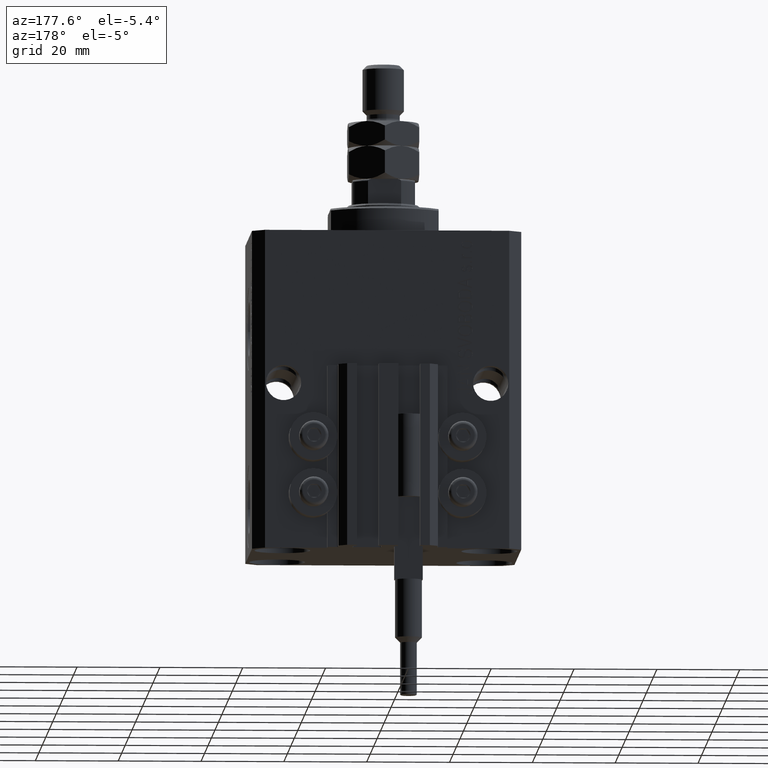
[diagram: clean part render]
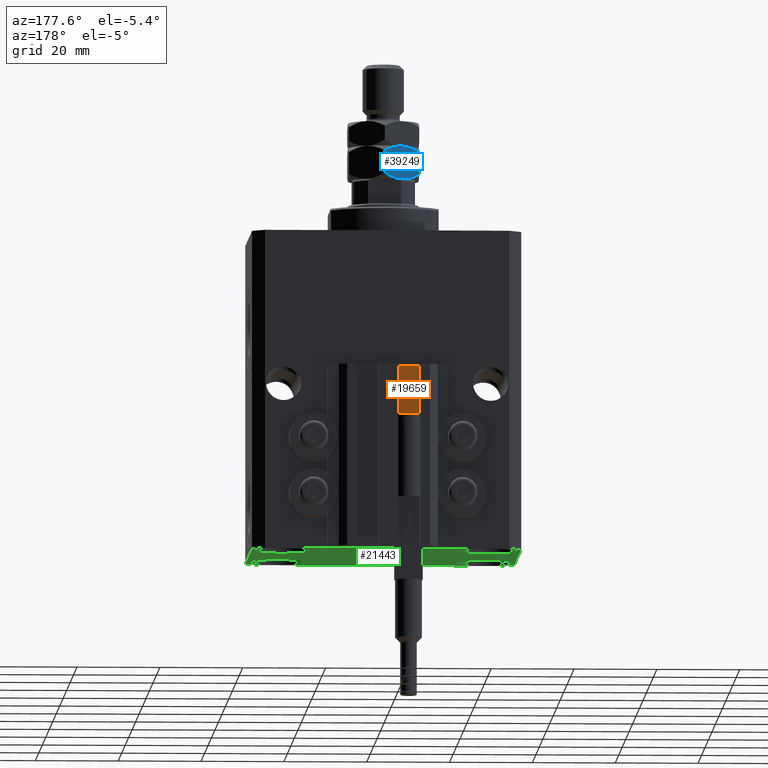
[diagram: same view with three faces highlighted in distinct colors, each labeled with its STEP entity id]
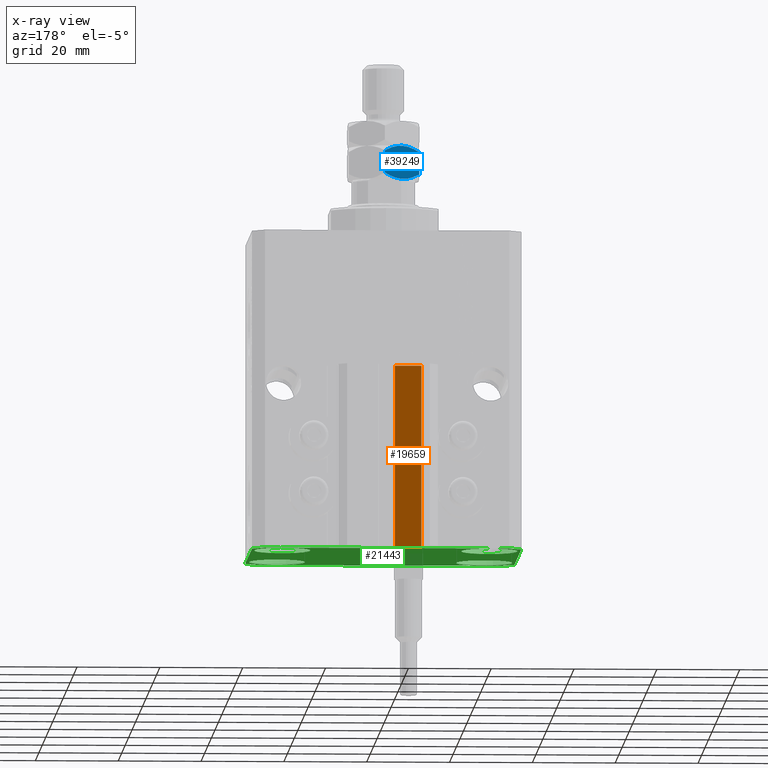
[diagram: x-ray of the same camera — body ghosted, the three highlighted faces saturated]
A machine part, auxiliary view with three faces highlighted in distinct colors.
The next image is the same camera in x-ray (body ghosted, the three faces saturated) — at least one of them is partly hidden behind the body in this view.
Their STEP definitions:

[orange] entity #19659 — the highlighted planar face has unit normal (0, 1, 0).
#1001 = PLANE ( 'NONE',  #47015 ) ;
#3110 = DIRECTION ( 'NONE',  ( 0.000000000000000000, 0.000000000000000000, 1.000000000000000000 ) ) ;
#3251 = DIRECTION ( 'NONE',  ( -1.000000000000000000, 0.000000000000000000, 0.000000000000000000 ) ) ;
#5103 = EDGE_CURVE ( 'NONE', #28020, #16138, #26289, .T. ) ;
#7058 = CARTESIAN_POINT ( 'NONE',  ( -1.800000000000000933, 24.49999999999949551, -77.00000000000000000 ) ) ;
#7915 = FACE_OUTER_BOUND ( 'NONE', #31817, .T. ) ;
#9576 = CARTESIAN_POINT ( 'NONE',  ( -1.800000000000000933, 24.49999999999949551, -77.00000000000000000 ) ) ;
#11433 = EDGE_CURVE ( 'NONE', #16138, #34694, #35994, .T. ) ;
#12896 = DIRECTION ( 'NONE',  ( 0.000000000000000000, 0.000000000000000000, 1.000000000000000000 ) ) ;
#15089 = ORIENTED_EDGE ( 'NONE', *, *, #5103, .T. ) ;
#15819 = EDGE_CURVE ( 'NONE', #28020, #46455, #38960, .T. ) ;
#16138 = VERTEX_POINT ( 'NONE', #20165 ) ;
#16290 = EDGE_CURVE ( 'NONE', #46455, #34694, #41889, .T. ) ;
#16444 = DIRECTION ( 'NONE',  ( 0.000000000000000000, 1.000000000000000000, -0.000000000000000000 ) ) ;
#19659 = ADVANCED_FACE ( 'NONE', ( #7915 ), #1001, .T. ) ;
#20165 = CARTESIAN_POINT ( 'NONE',  ( -8.199999999999999289, 24.49999999999949551, -77.00000000000000000 ) ) ;
#21620 = CARTESIAN_POINT ( 'NONE',  ( -8.199999999999999289, 24.49999999999949551, -33.00000000000000000 ) ) ;
#22160 = CARTESIAN_POINT ( 'NONE',  ( -1.800000000000000933, 24.49999999999949551, -33.00000000000000000 ) ) ;
#22643 = DIRECTION ( 'NONE',  ( -1.000000000000000000, 0.000000000000000000, 0.000000000000000000 ) ) ;
#26289 = LINE ( 'NONE', #7058, #45695 ) ;
#28020 = VERTEX_POINT ( 'NONE', #9576 ) ;
#29194 = VECTOR ( 'NONE', #12896, 1000.000000000000000 ) ;
#31817 = EDGE_LOOP ( 'NONE', ( #40197, #34930, #15089, #40746 ) ) ;
#33118 = VECTOR ( 'NONE', #40799, 1000.000000000000000 ) ;
#34694 = VERTEX_POINT ( 'NONE', #21620 ) ;
#34930 = ORIENTED_EDGE ( 'NONE', *, *, #15819, .F. ) ;
#35994 = LINE ( 'NONE', #48404, #33118 ) ;
#38960 = LINE ( 'NONE', #39716, #29194 ) ;
#39227 = CARTESIAN_POINT ( 'NONE',  ( -1.800000000000000933, 24.49999999999949551, -33.00000000000000000 ) ) ;
#39716 = CARTESIAN_POINT ( 'NONE',  ( -1.800000000000000933, 24.49999999999949551, -77.00000000000000000 ) ) ;
#40197 = ORIENTED_EDGE ( 'NONE', *, *, #16290, .F. ) ;
#40746 = ORIENTED_EDGE ( 'NONE', *, *, #11433, .T. ) ;
#40799 = DIRECTION ( 'NONE',  ( 0.000000000000000000, 0.000000000000000000, 1.000000000000000000 ) ) ;
#41889 = LINE ( 'NONE', #22160, #44604 ) ;
#44604 = VECTOR ( 'NONE', #22643, 1000.000000000000000 ) ;
#45695 = VECTOR ( 'NONE', #3251, 1000.000000000000000 ) ;
#46455 = VERTEX_POINT ( 'NONE', #39227 ) ;
#47015 = AXIS2_PLACEMENT_3D ( 'NONE', #49436, #16444, #3110 ) ;
#48404 = CARTESIAN_POINT ( 'NONE',  ( -8.199999999999999289, 24.49999999999949551, -77.00000000000000000 ) ) ;
#49436 = CARTESIAN_POINT ( 'NONE',  ( -1.800000000000000933, 24.49999999999949551, -77.00000000000000000 ) ) ;

[blue] entity #39249 — the highlighted planar face has unit normal (0.5, -0.866, 0).
#2315 = CARTESIAN_POINT ( 'NONE',  ( -4.989245346831672201, 6.934412432177284202, 8.000000000000005329 ) ) ;
#2597 = CARTESIAN_POINT ( 'NONE',  ( -4.249999999999994671, 7.361215932167727516, 8.000000000000000000 ) ) ;
#3078 = CARTESIAN_POINT ( 'NONE',  ( -1.348005192929855323, 9.036683415216572257, 7.396790787579877069 ) ) ;
#3259 = EDGE_LOOP ( 'NONE', ( #10305, #14223, #29049, #13859, #29201, #6322 ) ) ;
#5705 = EDGE_CURVE ( 'NONE', #20072, #20747, #31061, .T. ) ;
#6322 = ORIENTED_EDGE ( 'NONE', *, *, #34341, .F. ) ;
#6389 = CARTESIAN_POINT ( 'NONE',  ( -2.407069963478076779, 8.425232084851307590, 7.746375910675348919 ) ) ;
#7109 = CARTESIAN_POINT ( 'NONE',  ( -5.000029324638989081, 6.928186299687298266, 0.03373674959836554799 ) ) ;
#7281 = CARTESIAN_POINT ( 'NONE',  ( -4.249999999999994671, 7.361215932167727516, 8.000000000000000000 ) ) ;
#9736 = CARTESIAN_POINT ( 'NONE',  ( -4.249999999999994671, 7.361215932167727516, 8.000000000000000000 ) ) ;
#10164 = CARTESIAN_POINT ( 'NONE',  ( -7.834310611062749174, 5.291813236011422283, 7.069381371676069392 ) ) ;
#10305 = ORIENTED_EDGE ( 'NONE', *, *, #42503, .F. ) ;
#11152 = CARTESIAN_POINT ( 'NONE',  ( 1.960053746949402388E-16, 9.814954576223636096, 1.314954576223628546 ) ) ;
#11692 = CARTESIAN_POINT ( 'NONE',  ( -4.249999999999996447, 7.361215932167731957, 0.000000000000000000 ) ) ;
#12847 = CARTESIAN_POINT ( 'NONE',  ( -8.500000000000001776, 4.907477288111821601, 1.314954576223634097 ) ) ;
#13859 = ORIENTED_EDGE ( 'NONE', *, *, #5705, .F. ) ;
#14223 = ORIENTED_EDGE ( 'NONE', *, *, #21526, .F. ) ;
#14624 = EDGE_CURVE ( 'NONE', #20072, #37308, #15856, .T. ) ;
#14949 = CARTESIAN_POINT ( 'NONE',  ( -4.249999999999996447, 7.361215932167731957, 0.000000000000000000 ) ) ;
#15360 = DIRECTION ( 'NONE',  ( -0.000000000000000000, -0.000000000000000000, -1.000000000000000000 ) ) ;
#15380 = CARTESIAN_POINT ( 'NONE',  ( -8.500000000000001776, 4.907477288111821601, 6.685045423776368345 ) ) ;
#15856 = LINE ( 'NONE', #19655, #34038 ) ;
#15982 = CARTESIAN_POINT ( 'NONE',  ( -0.6656893889372521578, 9.430618628324037189, 0.9306186283239277213 ) ) ;
#18494 = CARTESIAN_POINT ( 'NONE',  ( -7.151994807070144233, 5.685748449118888104, 0.6032092124201268168 ) ) ;
#18495 = AXIS2_PLACEMENT_3D ( 'NONE', #29166, #25376, #19022 ) ;
#19022 = DIRECTION ( 'NONE',  ( 0.8660254037844389297, 0.4999999999999995559, 0.000000000000000000 ) ) ;
#19623 = CARTESIAN_POINT ( 'NONE',  ( -2.175848833159079736E-16, 9.814954576223636096, 6.685045423776372786 ) ) ;
#19655 = CARTESIAN_POINT ( 'NONE',  ( 0.000000000000000000, 9.814954576223636096, 8.000000000000000000 ) ) ;
#20072 = VERTEX_POINT ( 'NONE', #19623 ) ;
#20556 = B_SPLINE_CURVE_WITH_KNOTS ( 'NONE', 3,
 ( #11692, #27616, #31170, #39004, #15982, #35460 ),
 .UNSPECIFIED., .F., .F.,
 ( 4, 2, 4 ),
 ( 0.005087299150080244227, 0.007613005268011861781, 0.01013871138594347847 ),
 .UNSPECIFIED. ) ;
#20747 = VERTEX_POINT ( 'NONE', #9736 ) ;
#21386 = CARTESIAN_POINT ( 'NONE',  ( -8.500000000000001776, 4.907477288111821601, 8.000000000000000000 ) ) ;
#21526 = EDGE_CURVE ( 'NONE', #33751, #42567, #41618, .T. ) ;
#21578 = PLANE ( 'NONE',  #18495 ) ;
#21824 = CARTESIAN_POINT ( 'NONE',  ( -3.499970675361005590, 7.794245564648163871, 7.966263250401637741 ) ) ;
#22311 = CARTESIAN_POINT ( 'NONE',  ( -2.175848833159079736E-16, 9.814954576223636096, 6.685045423776372786 ) ) ;
#23439 = CARTESIAN_POINT ( 'NONE',  ( -8.500000000000001776, 4.907477288111821601, 6.685045423776368345 ) ) ;
#24962 = EDGE_CURVE ( 'NONE', #20747, #33751, #26722, .T. ) ;
#25271 = VECTOR ( 'NONE', #28969, 1000.000000000000000 ) ;
#25349 = CARTESIAN_POINT ( 'NONE',  ( -4.622229978650556070, 7.146308853793382987, -2.126899730555548151E-15 ) ) ;
#25376 = DIRECTION ( 'NONE',  ( 0.4999999999999995559, -0.8660254037844389297, 0.000000000000000000 ) ) ;
#25597 = CARTESIAN_POINT ( 'NONE',  ( -6.092930036521920556, 6.297199779484152771, 0.2536240893246534123 ) ) ;
#26336 = CARTESIAN_POINT ( 'NONE',  ( -8.500000000000001776, 4.907477288111821601, 1.314954576223634097 ) ) ;
#26722 = B_SPLINE_CURVE_WITH_KNOTS ( 'NONE', 3,
 ( #7281, #2315, #34110, #38647, #10164, #15380 ),
 .UNSPECIFIED., .F., .F.,
 ( 4, 2, 4 ),
 ( 0.005087299150080232084, 0.007613005268011854842, 0.01013871138594347847 ),
 .UNSPECIFIED. ) ;
#27616 = CARTESIAN_POINT ( 'NONE',  ( -3.510754653168324246, 7.788019432158175270, -2.226002585384300502E-15 ) ) ;
#28969 = DIRECTION ( 'NONE',  ( -0.000000000000000000, -0.000000000000000000, -1.000000000000000000 ) ) ;
#29049 = ORIENTED_EDGE ( 'NONE', *, *, #24962, .F. ) ;
#29166 = CARTESIAN_POINT ( 'NONE',  ( 0.000000000000000000, 9.814954576223636096, 8.000000000000000000 ) ) ;
#29201 = ORIENTED_EDGE ( 'NONE', *, *, #14624, .T. ) ;
#29549 = CARTESIAN_POINT ( 'NONE',  ( -4.249999999999996447, 7.361215932167731957, 0.000000000000000000 ) ) ;
#31061 = B_SPLINE_CURVE_WITH_KNOTS ( 'NONE', 3,
 ( #22311, #37741, #3078, #6389, #48917, #21824, #37009, #2597 ),
 .UNSPECIFIED., .F., .F.,
 ( 4, 2, 2, 4 ),
 ( 2.544313836662431582E-07, 0.002543776790731950600, 0.003815537970406090908, 0.005087299150080232084 ),
 .UNSPECIFIED. ) ;
#31170 = CARTESIAN_POINT ( 'NONE',  ( -2.784079206026081721, 8.207565697179243003, 0.1305202873832130295 ) ) ;
#32974 = FACE_OUTER_BOUND ( 'NONE', #3259, .T. ) ;
#33369 = B_SPLINE_CURVE_WITH_KNOTS ( 'NONE', 3,
 ( #26336, #37725, #18494, #25597, #41776, #7109, #25349, #14949 ),
 .UNSPECIFIED., .F., .F.,
 ( 4, 2, 2, 4 ),
 ( 2.544313836674336100E-07, 0.002543776790731957973, 0.003815537970406101317, 0.005087299150080244227 ),
 .UNSPECIFIED. ) ;
#33751 = VERTEX_POINT ( 'NONE', #23439 ) ;
#34038 = VECTOR ( 'NONE', #15360, 1000.000000000000000 ) ;
#34110 = CARTESIAN_POINT ( 'NONE',  ( -5.715920793973915615, 6.514866167156221799, 7.869479712616790579 ) ) ;
#34341 = EDGE_CURVE ( 'NONE', #39518, #37308, #20556, .T. ) ;
#35460 = CARTESIAN_POINT ( 'NONE',  ( 1.960053746949402388E-16, 9.814954576223636096, 1.314954576223628546 ) ) ;
#37009 = CARTESIAN_POINT ( 'NONE',  ( -3.877770021349439045, 7.576123010542077374, 8.000000000000001776 ) ) ;
#37308 = VERTEX_POINT ( 'NONE', #11152 ) ;
#37725 = CARTESIAN_POINT ( 'NONE',  ( -7.833539178395718672, 5.292258622869395523, 0.9301732414660626169 ) ) ;
#37741 = CARTESIAN_POINT ( 'NONE',  ( -0.6664608216042845479, 9.430173241466064837, 7.069826758533944044 ) ) ;
#38647 = CARTESIAN_POINT ( 'NONE',  ( -7.149107353189443792, 5.687415521394179940, 7.399061587263880746 ) ) ;
#39004 = CARTESIAN_POINT ( 'NONE',  ( -1.350892646810552433, 9.035016342941277756, 0.6009384127361191430 ) ) ;
#39249 = ADVANCED_FACE ( 'NONE', ( #32974 ), #21578, .F. ) ;
#39518 = VERTEX_POINT ( 'NONE', #29549 ) ;
#41618 = LINE ( 'NONE', #21386, #25271 ) ;
#41776 = CARTESIAN_POINT ( 'NONE',  ( -5.733718739115173157, 6.504590518737894733, 0.1608217079418319817 ) ) ;
#42503 = EDGE_CURVE ( 'NONE', #42567, #39518, #33369, .T. ) ;
#42567 = VERTEX_POINT ( 'NONE', #12847 ) ;
#48917 = CARTESIAN_POINT ( 'NONE',  ( -2.766281260884825510, 8.217841345597568292, 7.839178292058173625 ) ) ;

[green] entity #21443 — the highlighted planar face has unit normal (0, 0, 1).
#300 = DIRECTION ( 'NONE',  ( -0.000000000000000000, -0.000000000000000000, 1.000000000000000000 ) ) ;
#487 = CARTESIAN_POINT ( 'NONE',  ( 32.49999999999702993, 19.49999999999945999, -77.00000000000000000 ) ) ;
#848 = DIRECTION ( 'NONE',  ( 1.000000000000000000, 0.000000000000000000, 0.000000000000000000 ) ) ;
#1282 = VERTEX_POINT ( 'NONE', #13821 ) ;
#1379 = LINE ( 'NONE', #2139, #13946 ) ;
#1914 = CARTESIAN_POINT ( 'NONE',  ( 24.99999999999999645, 15.00000000000000888, -77.00000000000000000 ) ) ;
#2094 = LINE ( 'NONE', #14232, #3438 ) ;
#2139 = CARTESIAN_POINT ( 'NONE',  ( 32.49999999999651124, -19.49999999999949196, -77.00000000000000000 ) ) ;
#2410 = DIRECTION ( 'NONE',  ( -0.000000000000000000, -0.000000000000000000, 1.000000000000000000 ) ) ;
#2505 = CARTESIAN_POINT ( 'NONE',  ( -29.49999999999650413, -22.49999999999949907, -77.00000000000000000 ) ) ;
#2857 = EDGE_CURVE ( 'NONE', #34255, #35115, #46378, .T. ) ;
#2944 = VERTEX_POINT ( 'NONE', #8404 ) ;
#3438 = VECTOR ( 'NONE', #44860, 1000.000000000000114 ) ;
#4194 = CARTESIAN_POINT ( 'NONE',  ( 0.000000000000000000, 0.000000000000000000, -77.00000000000000000 ) ) ;
#4642 = CARTESIAN_POINT ( 'NONE',  ( 25.00000000000000355, -15.00000000000000000, -77.00000000000000000 ) ) ;
#5778 = EDGE_CURVE ( 'NONE', #2944, #16070, #26603, .T. ) ;
#5809 = ORIENTED_EDGE ( 'NONE', *, *, #16288, .T. ) ;
#6234 = ORIENTED_EDGE ( 'NONE', *, *, #15372, .T. ) ;
#7284 = DIRECTION ( 'NONE',  ( 0.000000000000000000, -1.000000000000000000, 0.000000000000000000 ) ) ;
#7401 = VERTEX_POINT ( 'NONE', #27404 ) ;
#7474 = CARTESIAN_POINT ( 'NONE',  ( -25.00000000000000355, 15.00000000000000000, -77.00000000000000000 ) ) ;
#7536 = CARTESIAN_POINT ( 'NONE',  ( -32.49999999999650413, 19.49999999999949907, -77.00000000000000000 ) ) ;
#7818 = ORIENTED_EDGE ( 'NONE', *, *, #18778, .F. ) ;
#8404 = CARTESIAN_POINT ( 'NONE',  ( 29.49999999999650413, -22.49999999999949196, -77.00000000000000000 ) ) ;
#9266 = ORIENTED_EDGE ( 'NONE', *, *, #43543, .T. ) ;
#9608 = CARTESIAN_POINT ( 'NONE',  ( -25.00000000000000355, 15.00000000000000000, -77.00000000000000000 ) ) ;
#9714 = EDGE_CURVE ( 'NONE', #36193, #34255, #35855, .T. ) ;
#10207 = CARTESIAN_POINT ( 'NONE',  ( 29.49999999999707967, 22.49999999999951328, -77.00000000000000000 ) ) ;
#10731 = VERTEX_POINT ( 'NONE', #43282 ) ;
#11076 = EDGE_LOOP ( 'NONE', ( #5809, #9266 ) ) ;
#11399 = ORIENTED_EDGE ( 'NONE', *, *, #17306, .F. ) ;
#11920 = EDGE_CURVE ( 'NONE', #1282, #41507, #46534, .T. ) ;
#12047 = FACE_OUTER_BOUND ( 'NONE', #20338, .T. ) ;
#12908 = DIRECTION ( 'NONE',  ( -0.000000000000000000, -0.000000000000000000, 1.000000000000000000 ) ) ;
#13369 = VECTOR ( 'NONE', #26888, 1000.000000000000000 ) ;
#13780 = DIRECTION ( 'NONE',  ( 1.334402673828349134E-14, 1.000000000000000000, 0.000000000000000000 ) ) ;
#13821 = CARTESIAN_POINT ( 'NONE',  ( -32.49999999999650413, -19.49999999999949907, -77.00000000000000000 ) ) ;
#13946 = VECTOR ( 'NONE', #13780, 1000.000000000000000 ) ;
#14053 = DIRECTION ( 'NONE',  ( 1.000000000000000000, 0.000000000000000000, 0.000000000000000000 ) ) ;
#14232 = CARTESIAN_POINT ( 'NONE',  ( -29.49999999999650413, 22.49999999999949907, -77.00000000000000000 ) ) ;
#14384 = ORIENTED_EDGE ( 'NONE', *, *, #9714, .F. ) ;
#14656 = FACE_BOUND ( 'NONE', #35594, .T. ) ;
#14939 = EDGE_CURVE ( 'NONE', #7401, #35635, #30828, .T. ) ;
#15146 = CARTESIAN_POINT ( 'NONE',  ( -32.49999999999650413, -19.49999999999949907, -77.00000000000000000 ) ) ;
#15372 = EDGE_CURVE ( 'NONE', #31825, #18325, #42975, .T. ) ;
#15667 = ORIENTED_EDGE ( 'NONE', *, *, #34415, .T. ) ;
#15693 = DIRECTION ( 'NONE',  ( 1.000000000000000000, 1.176083712526788232E-16, 0.000000000000000000 ) ) ;
#15737 = CARTESIAN_POINT ( 'NONE',  ( -25.00000000000000355, -15.00000000000000000, -77.00000000000000000 ) ) ;
#15790 = ORIENTED_EDGE ( 'NONE', *, *, #27360, .T. ) ;
#16070 = VERTEX_POINT ( 'NONE', #19676 ) ;
#16169 = CARTESIAN_POINT ( 'NONE',  ( 18.25000000004154543, 15.00000000000000888, -77.00000000000000000 ) ) ;
#16192 = DIRECTION ( 'NONE',  ( 1.000000000000000000, 0.000000000000000000, 0.000000000000000000 ) ) ;
#16288 = EDGE_CURVE ( 'NONE', #47500, #22588, #32497, .T. ) ;
#16356 = DIRECTION ( 'NONE',  ( 1.000000000000000000, 0.000000000000000000, 0.000000000000000000 ) ) ;
#16739 = AXIS2_PLACEMENT_3D ( 'NONE', #15737, #300, #19278 ) ;
#17306 = EDGE_CURVE ( 'NONE', #16070, #36193, #1379, .T. ) ;
#17706 = ORIENTED_EDGE ( 'NONE', *, *, #14939, .T. ) ;
#17804 = VECTOR ( 'NONE', #46777, 1000.000000000000114 ) ;
#18006 = AXIS2_PLACEMENT_3D ( 'NONE', #4194, #26046, #27471 ) ;
#18145 = DIRECTION ( 'NONE',  ( 1.000000000000000000, 0.000000000000000000, 0.000000000000000000 ) ) ;
#18325 = VERTEX_POINT ( 'NONE', #42195 ) ;
#18739 = DIRECTION ( 'NONE',  ( -0.7071067811865352493, 0.7071067811865597852, 0.000000000000000000 ) ) ;
#18778 = EDGE_CURVE ( 'NONE', #41507, #2944, #39463, .T. ) ;
#19085 = ORIENTED_EDGE ( 'NONE', *, *, #49868, .F. ) ;
#19174 = LINE ( 'NONE', #7536, #33315 ) ;
#19191 = VERTEX_POINT ( 'NONE', #36102 ) ;
#19278 = DIRECTION ( 'NONE',  ( 1.000000000000000000, 0.000000000000000000, 0.000000000000000000 ) ) ;
#19676 = CARTESIAN_POINT ( 'NONE',  ( 32.49999999999651124, -19.49999999999949196, -77.00000000000000000 ) ) ;
#19979 = CARTESIAN_POINT ( 'NONE',  ( -29.49999999999650413, -22.49999999999949907, -77.00000000000000000 ) ) ;
#20338 = EDGE_LOOP ( 'NONE', ( #41044, #14384, #11399, #33866, #7818, #43711, #19085, #48426 ) ) ;
#20767 = CARTESIAN_POINT ( 'NONE',  ( -31.75000000002253842, 15.00000000000000000, -77.00000000000000000 ) ) ;
#20944 = VECTOR ( 'NONE', #18739, 1000.000000000000000 ) ;
#21120 = EDGE_CURVE ( 'NONE', #35115, #19191, #2094, .T. ) ;
#21158 = AXIS2_PLACEMENT_3D ( 'NONE', #48538, #25732, #18145 ) ;
#21431 = CIRCLE ( 'NONE', #49725, 6.749999999958452790 ) ;
#21443 = ADVANCED_FACE ( 'NONE', ( #14656, #33650, #26294, #30088, #12047 ), #49581, .F. ) ;
#21550 = CARTESIAN_POINT ( 'NONE',  ( -18.24999999995845812, -15.00000000000000000, -77.00000000000000000 ) ) ;
#21835 = CARTESIAN_POINT ( 'NONE',  ( -18.24999999997747224, 15.00000000000000000, -77.00000000000000000 ) ) ;
#22588 = VERTEX_POINT ( 'NONE', #21835 ) ;
#22795 = AXIS2_PLACEMENT_3D ( 'NONE', #7474, #34295, #26451 ) ;
#23405 = ORIENTED_EDGE ( 'NONE', *, *, #33668, .T. ) ;
#25732 = DIRECTION ( 'NONE',  ( -0.000000000000000000, -0.000000000000000000, 1.000000000000000000 ) ) ;
#26046 = DIRECTION ( 'NONE',  ( 0.000000000000000000, 0.000000000000000000, 1.000000000000000000 ) ) ;
#26294 = FACE_BOUND ( 'NONE', #30159, .T. ) ;
#26451 = DIRECTION ( 'NONE',  ( 1.000000000000000000, 0.000000000000000000, 0.000000000000000000 ) ) ;
#26603 = LINE ( 'NONE', #34445, #45043 ) ;
#26888 = DIRECTION ( 'NONE',  ( -1.000000000000000000, -2.352167425053553784E-16, 0.000000000000000000 ) ) ;
#27360 = EDGE_CURVE ( 'NONE', #35635, #7401, #21431, .T. ) ;
#27404 = CARTESIAN_POINT ( 'NONE',  ( 31.74999999995845101, 15.00000000000000888, -77.00000000000000000 ) ) ;
#27471 = DIRECTION ( 'NONE',  ( 1.000000000000000000, 0.000000000000000000, -0.000000000000000000 ) ) ;
#28398 = VECTOR ( 'NONE', #15693, 1000.000000000000000 ) ;
#28681 = CARTESIAN_POINT ( 'NONE',  ( 24.99999999999999645, 15.00000000000000888, -77.00000000000000000 ) ) ;
#29155 = AXIS2_PLACEMENT_3D ( 'NONE', #9608, #12908, #16192 ) ;
#30088 = FACE_BOUND ( 'NONE', #11076, .T. ) ;
#30159 = EDGE_LOOP ( 'NONE', ( #15790, #17706 ) ) ;
#30828 = CIRCLE ( 'NONE', #43769, 6.749999999958452790 ) ;
#30909 = DIRECTION ( 'NONE',  ( 0.7071067811865483499, 0.7071067811865466846, 0.000000000000000000 ) ) ;
#30980 = DIRECTION ( 'NONE',  ( -0.000000000000000000, -0.000000000000000000, 1.000000000000000000 ) ) ;
#31825 = VERTEX_POINT ( 'NONE', #44857 ) ;
#32497 = CIRCLE ( 'NONE', #22795, 6.750000000022533087 ) ;
#32999 = CIRCLE ( 'NONE', #41878, 6.749999999977465137 ) ;
#33315 = VECTOR ( 'NONE', #7284, 1000.000000000000000 ) ;
#33650 = FACE_BOUND ( 'NONE', #48244, .T. ) ;
#33668 = EDGE_CURVE ( 'NONE', #42466, #10731, #49984, .T. ) ;
#33866 = ORIENTED_EDGE ( 'NONE', *, *, #5778, .F. ) ;
#33989 = EDGE_CURVE ( 'NONE', #18325, #31825, #32999, .T. ) ;
#34255 = VERTEX_POINT ( 'NONE', #10207 ) ;
#34295 = DIRECTION ( 'NONE',  ( -0.000000000000000000, -0.000000000000000000, 1.000000000000000000 ) ) ;
#34415 = EDGE_CURVE ( 'NONE', #10731, #42466, #43397, .T. ) ;
#34445 = CARTESIAN_POINT ( 'NONE',  ( 29.49999999999650413, -22.49999999999949196, -77.00000000000000000 ) ) ;
#35115 = VERTEX_POINT ( 'NONE', #45982 ) ;
#35594 = EDGE_LOOP ( 'NONE', ( #15667, #23405 ) ) ;
#35635 = VERTEX_POINT ( 'NONE', #16169 ) ;
#35855 = LINE ( 'NONE', #38460, #20944 ) ;
#36102 = CARTESIAN_POINT ( 'NONE',  ( -32.49999999999650413, 19.49999999999949907, -77.00000000000000000 ) ) ;
#36193 = VERTEX_POINT ( 'NONE', #487 ) ;
#36782 = DIRECTION ( 'NONE',  ( -0.000000000000000000, -0.000000000000000000, 1.000000000000000000 ) ) ;
#38460 = CARTESIAN_POINT ( 'NONE',  ( 32.49999999999702993, 19.49999999999945999, -77.00000000000000000 ) ) ;
#39463 = LINE ( 'NONE', #19979, #28398 ) ;
#40718 = ORIENTED_EDGE ( 'NONE', *, *, #33989, .T. ) ;
#41044 = ORIENTED_EDGE ( 'NONE', *, *, #2857, .F. ) ;
#41325 = DIRECTION ( 'NONE',  ( 1.000000000000000000, 0.000000000000000000, 0.000000000000000000 ) ) ;
#41507 = VERTEX_POINT ( 'NONE', #2505 ) ;
#41878 = AXIS2_PLACEMENT_3D ( 'NONE', #4642, #30980, #848 ) ;
#42195 = CARTESIAN_POINT ( 'NONE',  ( 31.74999999997746869, -15.00000000000000000, -77.00000000000000000 ) ) ;
#42466 = VERTEX_POINT ( 'NONE', #21550 ) ;
#42975 = CIRCLE ( 'NONE', #21158, 6.749999999977465137 ) ;
#43282 = CARTESIAN_POINT ( 'NONE',  ( -31.75000000004154899, -15.00000000000000000, -77.00000000000000000 ) ) ;
#43397 = CIRCLE ( 'NONE', #16739, 6.750000000041541881 ) ;
#43543 = EDGE_CURVE ( 'NONE', #22588, #47500, #49356, .T. ) ;
#43711 = ORIENTED_EDGE ( 'NONE', *, *, #11920, .F. ) ;
#43769 = AXIS2_PLACEMENT_3D ( 'NONE', #28681, #36782, #41325 ) ;
#44857 = CARTESIAN_POINT ( 'NONE',  ( 18.25000000002253842, -15.00000000000000000, -77.00000000000000000 ) ) ;
#44860 = DIRECTION ( 'NONE',  ( -0.7071067811865474617, -0.7071067811865474617, 0.000000000000000000 ) ) ;
#45043 = VECTOR ( 'NONE', #30909, 1000.000000000000000 ) ;
#45982 = CARTESIAN_POINT ( 'NONE',  ( -29.49999999999650413, 22.49999999999949907, -77.00000000000000000 ) ) ;
#46378 = LINE ( 'NONE', #49924, #13369 ) ;
#46484 = DIRECTION ( 'NONE',  ( -0.000000000000000000, -0.000000000000000000, 1.000000000000000000 ) ) ;
#46534 = LINE ( 'NONE', #15146, #17804 ) ;
#46777 = DIRECTION ( 'NONE',  ( 0.7071067811865474617, -0.7071067811865474617, 0.000000000000000000 ) ) ;
#47500 = VERTEX_POINT ( 'NONE', #20767 ) ;
#48244 = EDGE_LOOP ( 'NONE', ( #6234, #40718 ) ) ;
#48426 = ORIENTED_EDGE ( 'NONE', *, *, #21120, .F. ) ;
#48538 = CARTESIAN_POINT ( 'NONE',  ( 25.00000000000000355, -15.00000000000000000, -77.00000000000000000 ) ) ;
#49043 = CARTESIAN_POINT ( 'NONE',  ( -25.00000000000000355, -15.00000000000000000, -77.00000000000000000 ) ) ;
#49356 = CIRCLE ( 'NONE', #29155, 6.750000000022533087 ) ;
#49581 = PLANE ( 'NONE',  #18006 ) ;
#49725 = AXIS2_PLACEMENT_3D ( 'NONE', #1914, #2410, #14053 ) ;
#49868 = EDGE_CURVE ( 'NONE', #19191, #1282, #19174, .T. ) ;
#49924 = CARTESIAN_POINT ( 'NONE',  ( 29.49999999999707967, 22.49999999999951328, -77.00000000000000000 ) ) ;
#49944 = AXIS2_PLACEMENT_3D ( 'NONE', #49043, #46484, #16356 ) ;
#49984 = CIRCLE ( 'NONE', #49944, 6.750000000041541881 ) ;